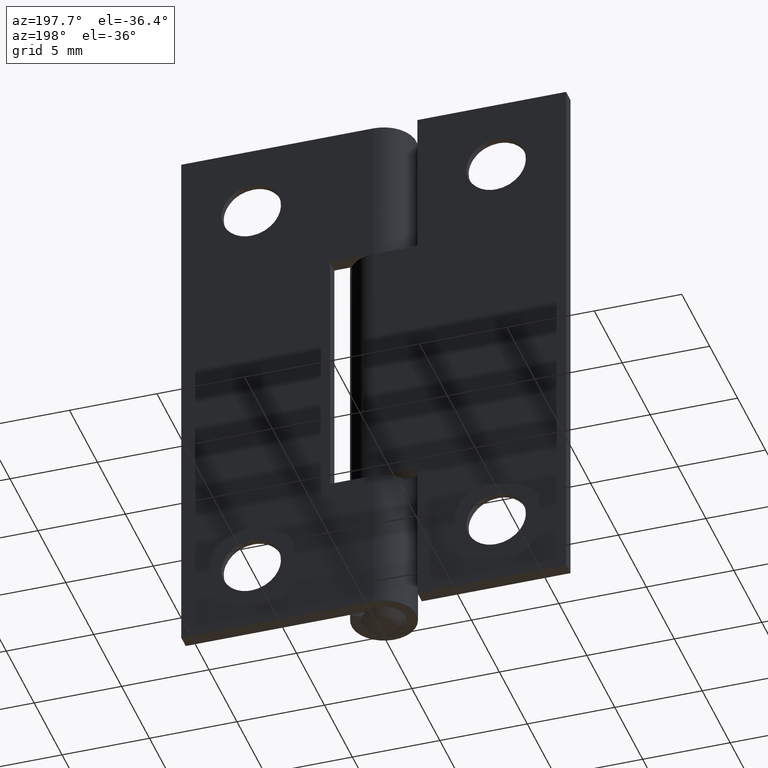
[diagram: clean part render]
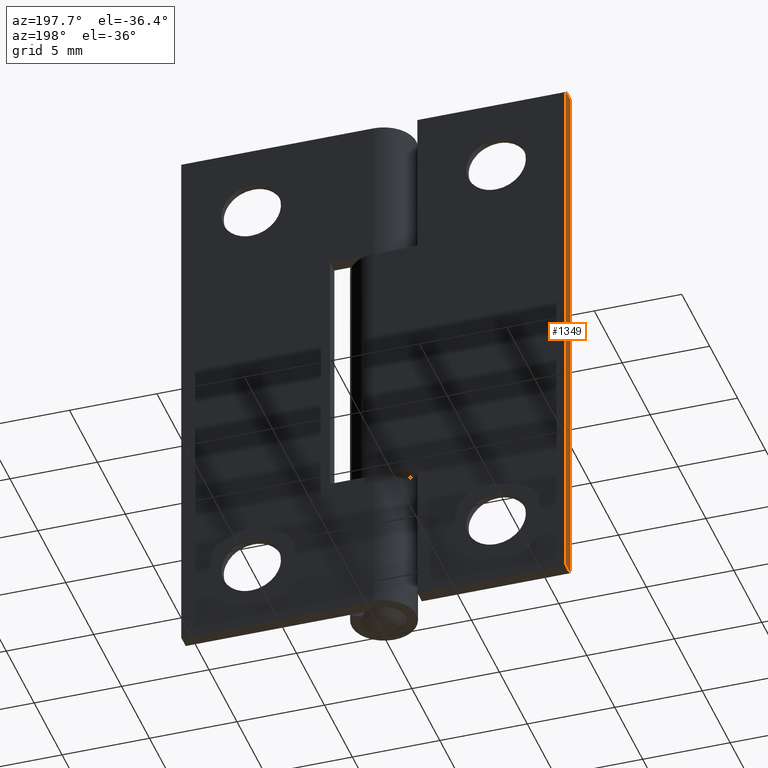
[diagram: same view with one face highlighted and labeled with its STEP entity id]
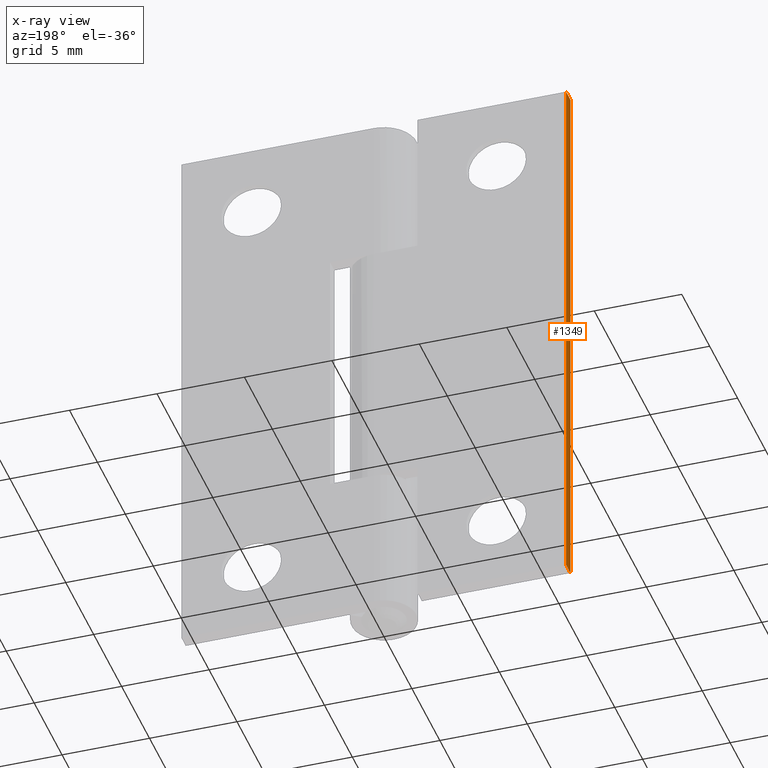
[diagram: x-ray of the same camera — body ghosted, the highlighted face saturated]
A machine part, auxiliary view. The second image highlights one B-rep face of the part: STEP entity #1349.
The next image is the same camera in x-ray: the body ghosted, the highlighted face saturated — about 0% of this face is hidden behind the body in this view.
In plain terms, the highlighted face is a freeform B-spline surface patch.
Its self-contained STEP definition (entity closure, byte-faithful):
#1314=CARTESIAN_POINT('',(-10.999999999999700,1.010031001550457,-1.598400287627777));
#1315=CARTESIAN_POINT('',(-10.999999999999700,1.010031001550457,33.598408145934798));
#1316=CARTESIAN_POINT('',(-10.999999999999700,1.889951019907022,-1.598400287627777));
#1317=CARTESIAN_POINT('',(-10.999999999999700,1.889951019907022,33.598408145934798));
#1318=B_SPLINE_SURFACE_WITH_KNOTS('',1,1,((#1314,#1316),(#1315,#1317)),.UNSPECIFIED.,.F.,.F.,.U.,(2,2),(2,2),(0.0,35.196808433562573),(0.041708334948495,0.958291687403247),.UNSPECIFIED.);
#1319=CARTESIAN_POINT('',(-10.999999999999700,1.049990999999902,0.0));
#1320=VERTEX_POINT('',#1319);
#1321=CARTESIAN_POINT('',(-10.999999999999700,1.849990999999905,0.0));
#1322=VERTEX_POINT('',#1321);
#1323=CARTESIAN_POINT('',(-10.999999999999700,1.049990999999902,0.0));
#1324=CARTESIAN_POINT('',(-10.999999999999700,1.849990999999905,0.0));
#1325=QUASI_UNIFORM_CURVE('',1,(#1323,#1324),.UNSPECIFIED.,.F.,.U.);
#1326=EDGE_CURVE('',#1320,#1322,#1325,.T.);
#1327=ORIENTED_EDGE('',*,*,#1326,.F.);
#1328=CARTESIAN_POINT('',(-10.999999999999700,1.049990999999902,32.000006999999947));
#1329=VERTEX_POINT('',#1328);
#1330=CARTESIAN_POINT('',(-10.999999999999700,1.049990999999902,32.000006999999947));
#1331=CARTESIAN_POINT('',(-10.999999999999700,1.049990999999902,0.0));
#1332=QUASI_UNIFORM_CURVE('',1,(#1330,#1331),.UNSPECIFIED.,.F.,.U.);
#1333=EDGE_CURVE('',#1329,#1320,#1332,.T.);
#1334=ORIENTED_EDGE('',*,*,#1333,.F.);
#1335=CARTESIAN_POINT('',(-10.999999999999700,1.849990999999905,32.000006999999947));
#1336=VERTEX_POINT('',#1335);
#1337=CARTESIAN_POINT('',(-10.999999999999700,1.049990999999902,32.000006999999947));
#1338=CARTESIAN_POINT('',(-10.999999999999700,1.849990999999905,32.000006999999947));
#1339=QUASI_UNIFORM_CURVE('',1,(#1337,#1338),.UNSPECIFIED.,.F.,.U.);
#1340=EDGE_CURVE('',#1329,#1336,#1339,.T.);
#1341=ORIENTED_EDGE('',*,*,#1340,.T.);
#1342=CARTESIAN_POINT('',(-10.999999999999700,1.849990999999905,32.000006999999947));
#1343=CARTESIAN_POINT('',(-10.999999999999700,1.849990999999905,0.0));
#1344=QUASI_UNIFORM_CURVE('',1,(#1342,#1343),.UNSPECIFIED.,.F.,.U.);
#1345=EDGE_CURVE('',#1336,#1322,#1344,.T.);
#1346=ORIENTED_EDGE('',*,*,#1345,.T.);
#1347=EDGE_LOOP('',(#1327,#1334,#1341,#1346));
#1348=FACE_OUTER_BOUND('',#1347,.T.);
#1349=ADVANCED_FACE('',(#1348),#1318,.T.);